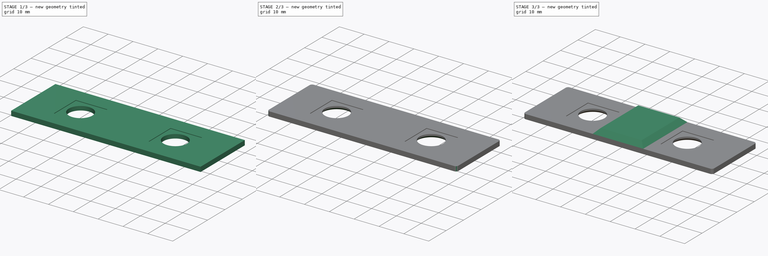
[diagram: build sequence overview — one tinted view per stage of 3, left to right]
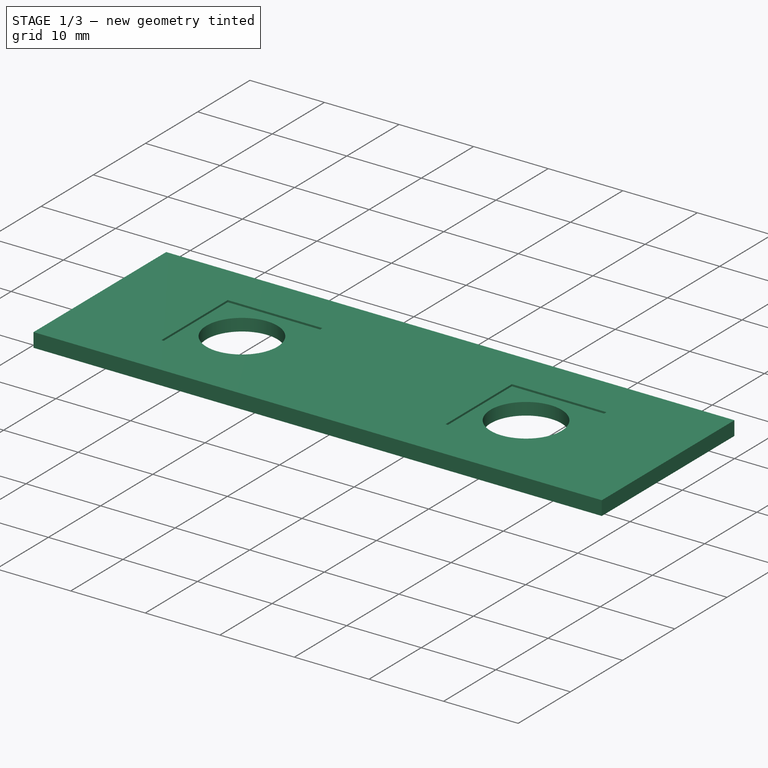
[diagram: stage 1 of 3 — iso view after this stage's code; geometry added in this stage tinted green]
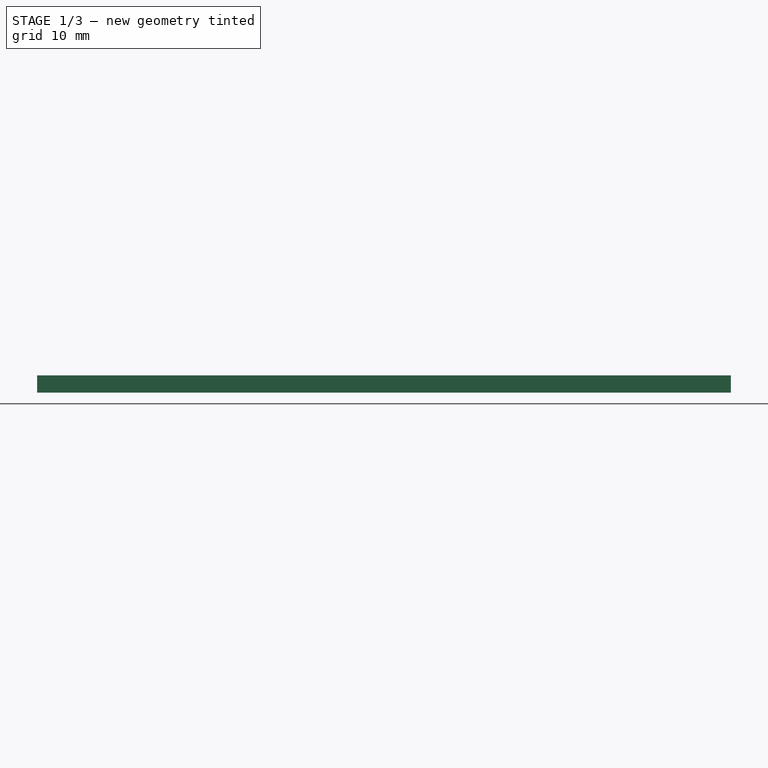
[diagram: stage 1 of 3 — front view after this stage's code; geometry added in this stage tinted green]
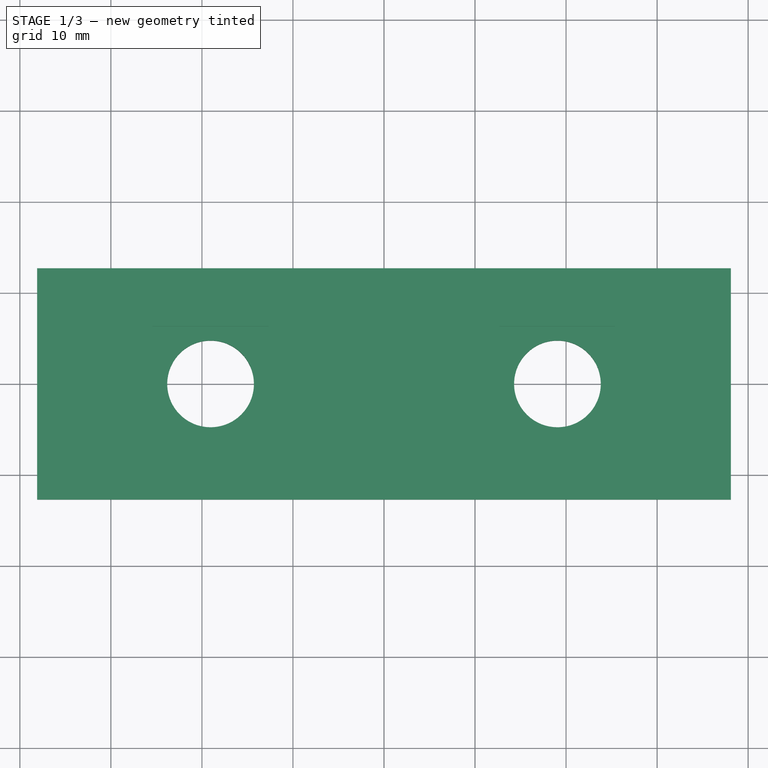
[diagram: stage 1 of 3 — top view after this stage's code; geometry added in this stage tinted green]
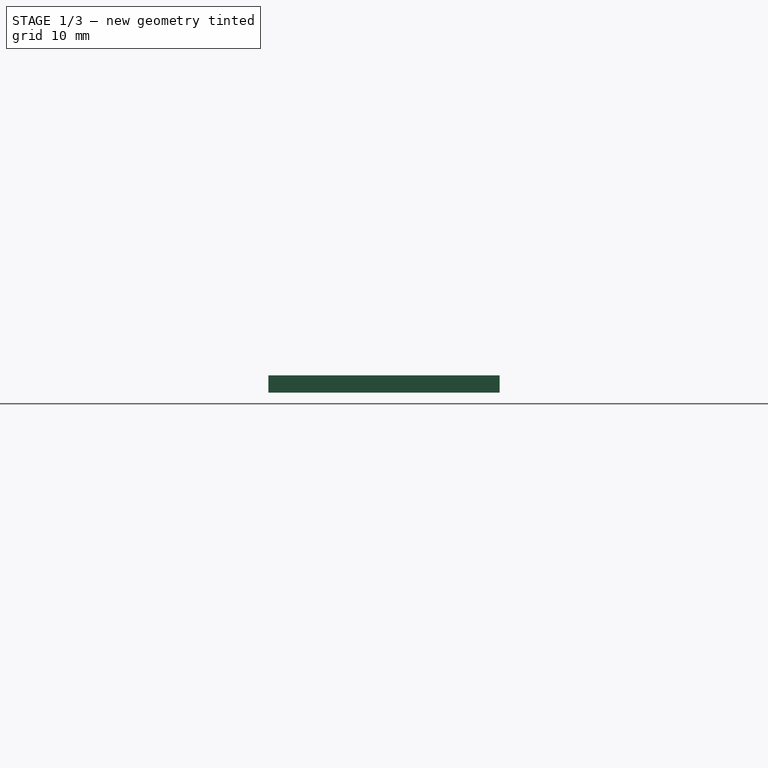
[diagram: stage 1 of 3 — right view after this stage's code; geometry added in this stage tinted green]
FCSTD DOCUMENT  (FreeCAD 0.18R16146 (Git))
Label: Sample_Holder_Nonlinear_0p075_Bump
License: All rights reserved
LicenseURL: http://en.wikipedia.org/wiki/All_rights_reserved
objects: Sketcher::SketchObject×3, PartDesign::Pad×2, PartDesign::Chamfer×2, PartDesign::Pocket×1, PartDesign::Fillet×1, PartDesign::Body×1
note: 13 computed .brp shape members not serialized (recipe doc carries the construction recipe); baked Part::Feature solids carry a one-line shape summary decoded from their .brp

FEATURE [Sketcher::SketchObject] Sketch
  MapMode = 5
  Support = -> [XY_Plane]
  sketch-geometry (8):
    g0: LineSegment StartX=-38.1 StartY=12.7 StartZ=0 EndX=38.1 EndY=12.7 EndZ=0
    g1: LineSegment StartX=38.1 StartY=12.7 StartZ=0 EndX=38.1 EndY=-12.7 EndZ=0
    g2: LineSegment StartX=38.1 StartY=-12.7 StartZ=0 EndX=-38.1 EndY=-12.7 EndZ=0
    g3: LineSegment StartX=-38.1 StartY=-12.7 StartZ=0 EndX=-38.1 EndY=12.7 EndZ=0
    g4: LineSegment [constr] StartX=0 StartY=0 StartZ=0 EndX=19.05 EndY=0 EndZ=0
    g5: LineSegment [constr] StartX=0 StartY=0 StartZ=0 EndX=-19.05 EndY=0 EndZ=0
    g6: Circle CenterX=-19.05 CenterY=0 CenterZ=0 NormalX=0 NormalY=0 NormalZ=1 AngleXU=0 Radius=4.7625
    g7: Circle CenterX=19.05 CenterY=0 CenterZ=0 NormalX=0 NormalY=0 NormalZ=1 AngleXU=0 Radius=4.7625
  constraints (16):
    c: Coincident(g0,g1)
    c: Coincident(g1,g2)
    c: Coincident(g2,g3)
    c: Coincident(g3,g0)
    c: Horizontal(g0)
    c: Vertical(g1)
    c: DistanceX(g0,g0) = 76.2
    c: DistanceY(g3,g3) = 25.4
    c: Symmetric(g2,g1,g-2)
    c: Symmetric(g0,g2,g-1)
    c: Horizontal(g5)
    c: Horizontal(g4)
    c: DistanceX(g5,g5) = 19.05
    c: Equal(g5,g4)
    c: Coincident(g6,g5)
    c: Coincident(g7,g4)
FEATURE [PartDesign::Pad] Pad
  Length = 1.905
  Length2 = 99.9998
  Profile = -> Sketch
  Type = 0
FEATURE [Sketcher::SketchObject] Sketch001
  MapMode = 5
  Placement = pos=(0,0,1.905) rot=(0,0,1;0rad)
  sketch-geometry (12):
    g0: LineSegment StartX=-25.4 StartY=6.35 StartZ=0 EndX=-12.7 EndY=6.35 EndZ=0
    g1: LineSegment StartX=-12.7 StartY=6.35 StartZ=0 EndX=-12.7 EndY=-6.35 EndZ=0
    g2: LineSegment StartX=-12.7 StartY=-6.35 StartZ=0 EndX=-25.4 EndY=-6.35 EndZ=0
    g3: LineSegment StartX=-25.4 StartY=-6.35 StartZ=0 EndX=-25.4 EndY=6.35 EndZ=0
    g4: LineSegment StartX=12.7 StartY=6.35 StartZ=0 EndX=25.4 EndY=6.35 EndZ=0
    g5: LineSegment StartX=25.4 StartY=6.35 StartZ=0 EndX=25.4 EndY=-6.35 EndZ=0
    g6: LineSegment StartX=25.4 StartY=-6.35 StartZ=0 EndX=12.7 EndY=-6.35 EndZ=0
    g7: LineSegment StartX=12.7 StartY=-6.35 StartZ=0 EndX=12.7 EndY=6.35 EndZ=0
    g8: LineSegment [constr] StartX=0 StartY=0 StartZ=0 EndX=-19.05 EndY=0 EndZ=0
    g9: LineSegment [constr] StartX=0 StartY=0 StartZ=0 EndX=19.05 EndY=0 EndZ=0
    g10: LineSegment [constr] StartX=-19.05 StartY=-19.05 StartZ=0 EndX=-19.05 EndY=0 EndZ=0
    g11: LineSegment [constr] StartX=19.05 StartY=-19.05 StartZ=0 EndX=19.05 EndY=0 EndZ=0
  constraints (30):
    c: Coincident(g0,g1)
    c: Coincident(g1,g2)
    c: Coincident(g2,g3)
    c: Coincident(g3,g0)
    c: Horizontal(g0)
    c: Horizontal(g2)
    c: Vertical(g1)
    c: Vertical(g3)
    c: Coincident(g4,g5)
    c: Coincident(g5,g6)
    c: Coincident(g6,g7)
    c: Coincident(g7,g4)
    c: Horizontal(g4)
    c: Horizontal(g6)
    c: Vertical(g5)
    c: Vertical(g7)
    c: Coincident(g9,g-1)
    c: Coincident(g8,g-1)
    c: DistanceX(g8,g8) = 19.05
    c: Equal(g8,g9)
    c: Symmetric(g0,g1,g8)
    c: Symmetric(g4,g6,g9)
    c: Coincident(g9,g11)
    c: Coincident(g8,g10)
    c: DistanceY(g10,g10) = 19.05
    c: Equal(g10,g11)
    c: Symmetric(g2,g1,g10)
    c: Symmetric(g6,g5,g11)
    c: Equal(g4,g5)
    c: Equal(g3,g2)
FEATURE [PartDesign::Pocket] Pocket
  BaseFeature = -> Pad
  Length = 0.254
  Length2 = 99.9998
  Profile = -> Sketch001
  Type = 0
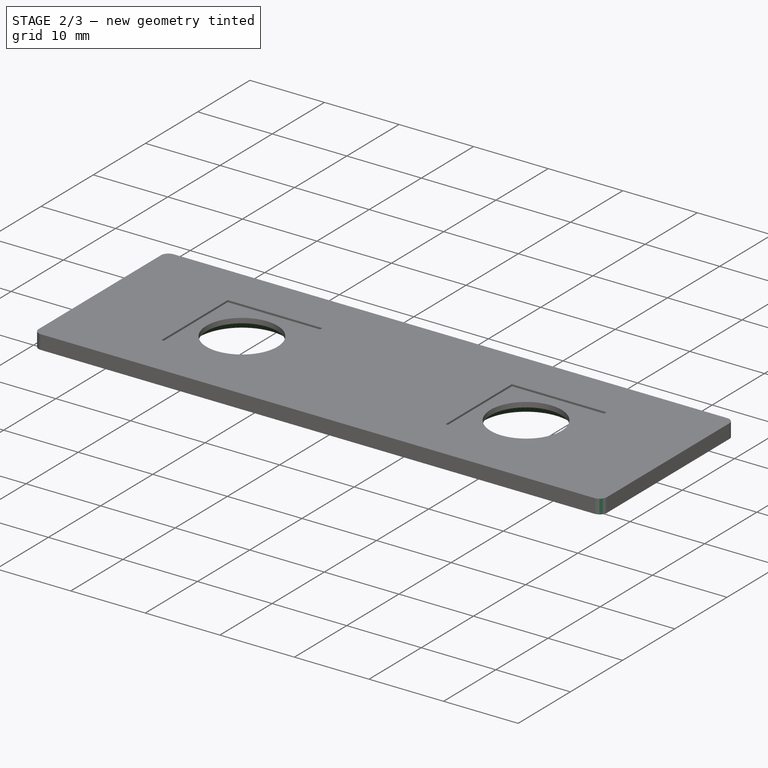
[diagram: stage 2 of 3 — iso view after this stage's code; geometry added in this stage tinted green]
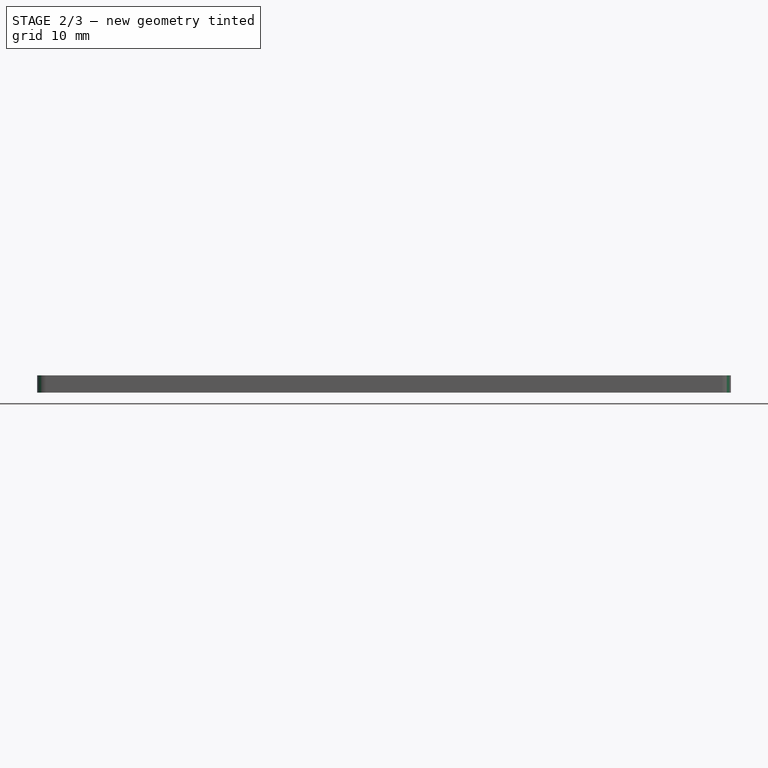
[diagram: stage 2 of 3 — front view after this stage's code; geometry added in this stage tinted green]
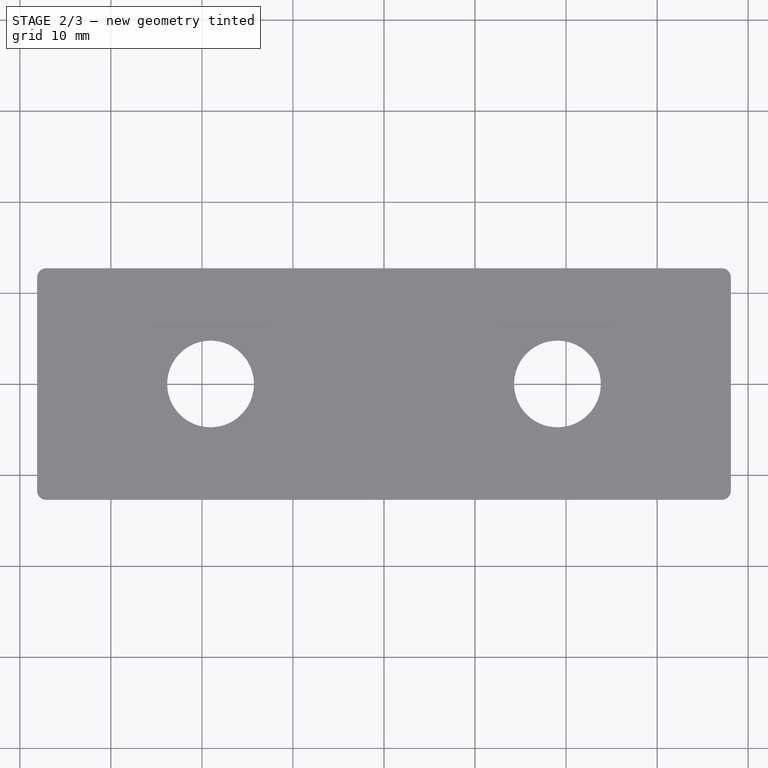
[diagram: stage 2 of 3 — top view after this stage's code; geometry added in this stage tinted green]
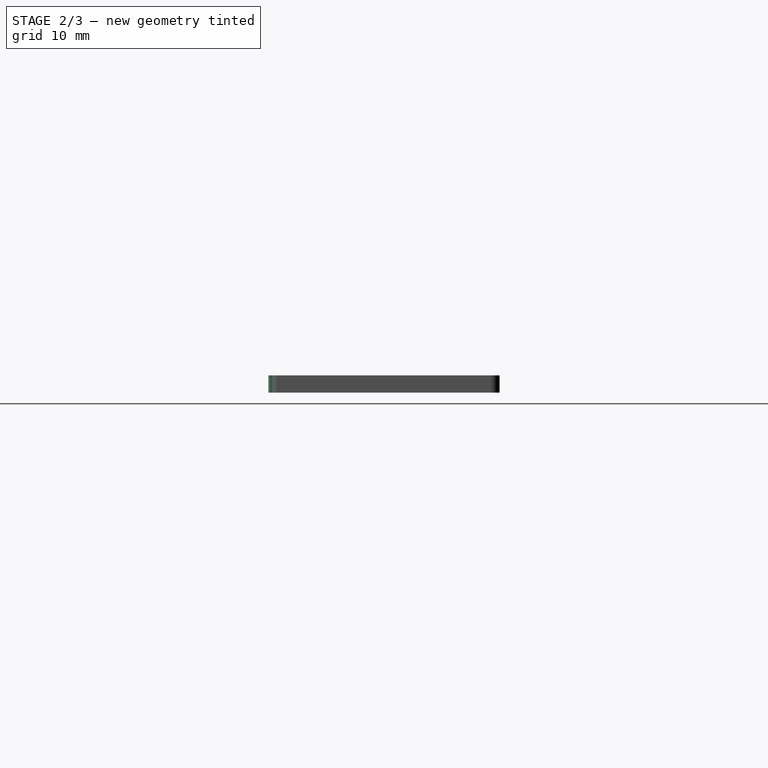
[diagram: stage 2 of 3 — right view after this stage's code; geometry added in this stage tinted green]
FEATURE [Sketcher::SketchObject] Sketch002
  ExternalGeometry = -> [Pocket]
  MapMode = 5
  Placement = pos=(0,0,1.905) rot=(0,0,1;0rad)
  Support = -> [Pocket]
  sketch-geometry (4):
    g0: LineSegment StartX=-10.16 StartY=12.7 StartZ=0 EndX=10.16 EndY=12.7 EndZ=0
    g1: LineSegment StartX=10.16 StartY=12.7 StartZ=0 EndX=10.16 EndY=-12.7 EndZ=0
    g2: LineSegment StartX=10.16 StartY=-12.7 StartZ=0 EndX=-10.16 EndY=-12.7 EndZ=0
    g3: LineSegment StartX=-10.16 StartY=-12.7 StartZ=0 EndX=-10.16 EndY=12.7 EndZ=0
  constraints (11):
    c: Coincident(g0,g1)
    c: Coincident(g1,g2)
    c: Coincident(g2,g3)
    c: Coincident(g3,g0)
    c: Horizontal(g2)
    c: Vertical(g1)
    c: Vertical(g3)
    c: PointOnObject(g0,g-3)
    c: PointOnObject(g1,g-4)
    c: Symmetric(g0,g0,g-2)
    c: DistanceX(g0,g0) = 20.32
FEATURE [PartDesign::Chamfer] Chamfer
  Base = -> Pocket [Edge12,Edge13]
  BaseFeature = -> Pocket
  Size = 1
FEATURE [PartDesign::Fillet] Fillet
  Base = -> Chamfer [Edge10,Edge12,Edge14,Edge9]
  BaseFeature = -> Chamfer
  Radius = 1
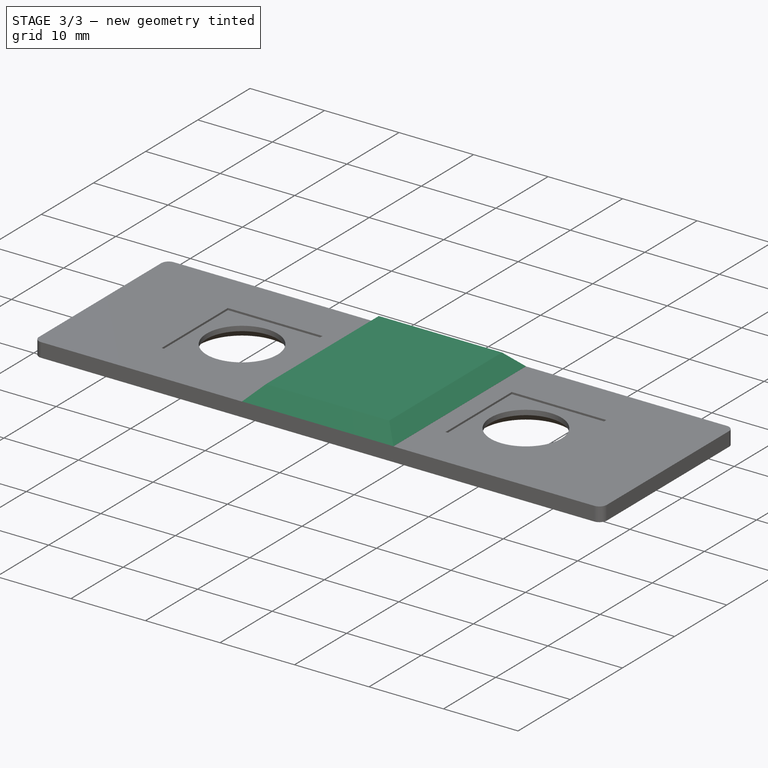
[diagram: stage 3 of 3 — iso view after this stage's code; geometry added in this stage tinted green]
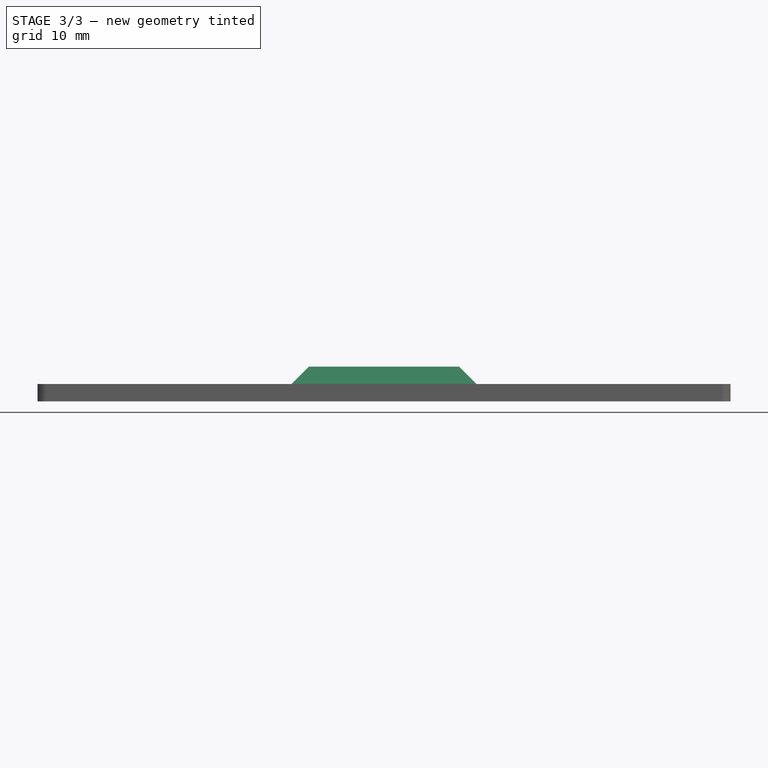
[diagram: stage 3 of 3 — front view after this stage's code; geometry added in this stage tinted green]
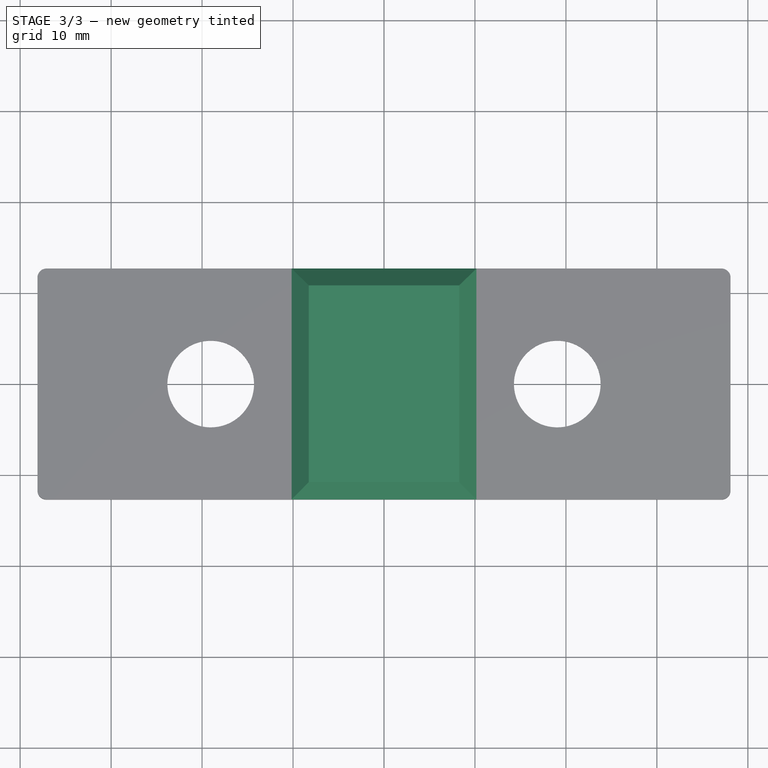
[diagram: stage 3 of 3 — top view after this stage's code; geometry added in this stage tinted green]
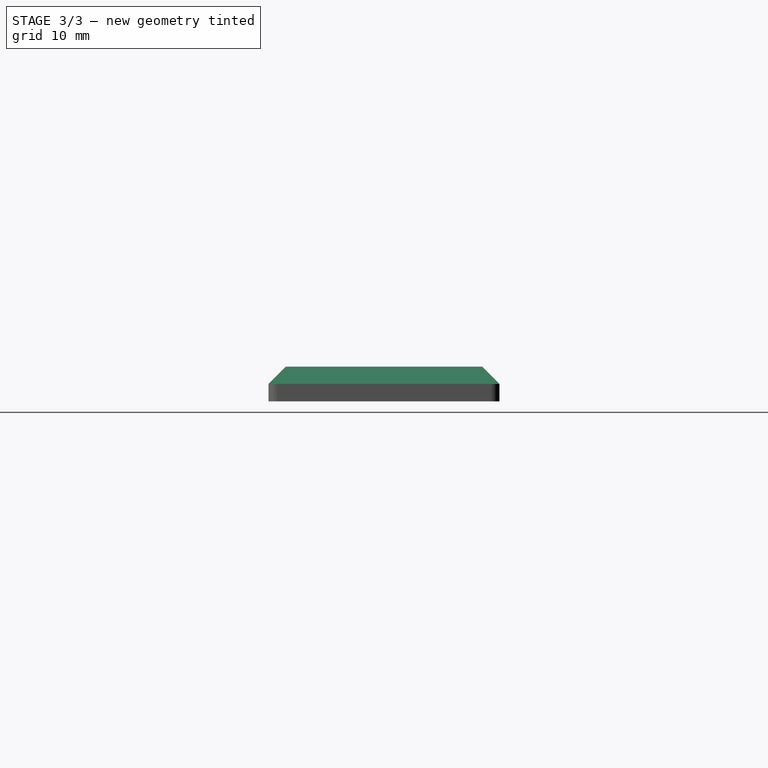
[diagram: stage 3 of 3 — right view after this stage's code; geometry added in this stage tinted green]
FEATURE [PartDesign::Pad] Pad001
  BaseFeature = -> Fillet
  Length = 1.905
  Length2 = 100
  Profile = -> Sketch002
  Type = 0
FEATURE [PartDesign::Chamfer] Chamfer001
  Base = -> Pad001 [Edge50,Edge55,Edge64,Edge42]
  BaseFeature = -> Pad001
  Size = 1.889
FEATURE [PartDesign::Body] Body
  Group = -> [Sketch,Pad,Sketch001,Pocket,Sketch002,Chamfer,Fillet,Pad001,Chamfer001]
  Origin = -> Origin
  Tip = -> Chamfer001
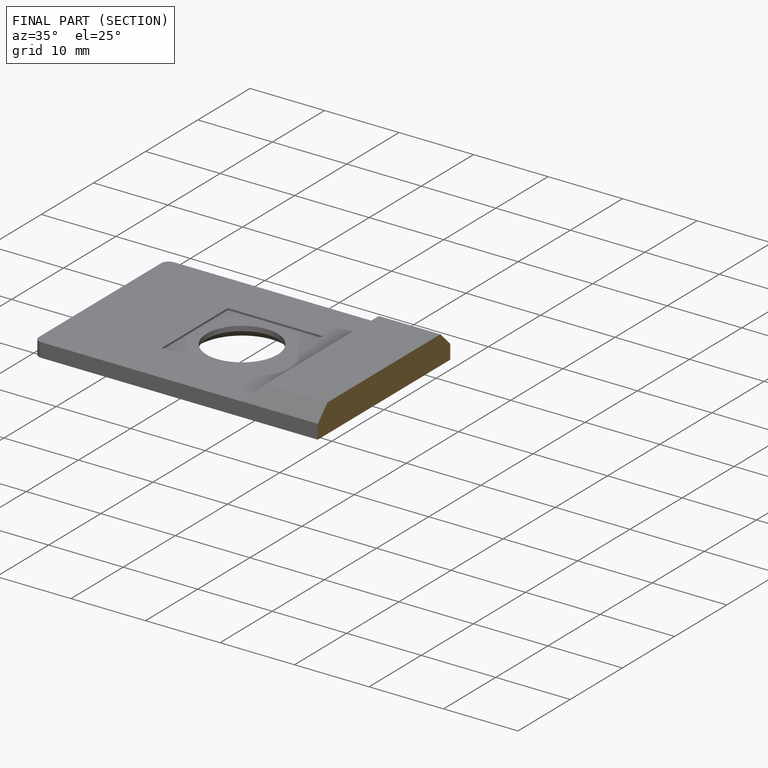
[diagram: finished part — half-section view (interior)]
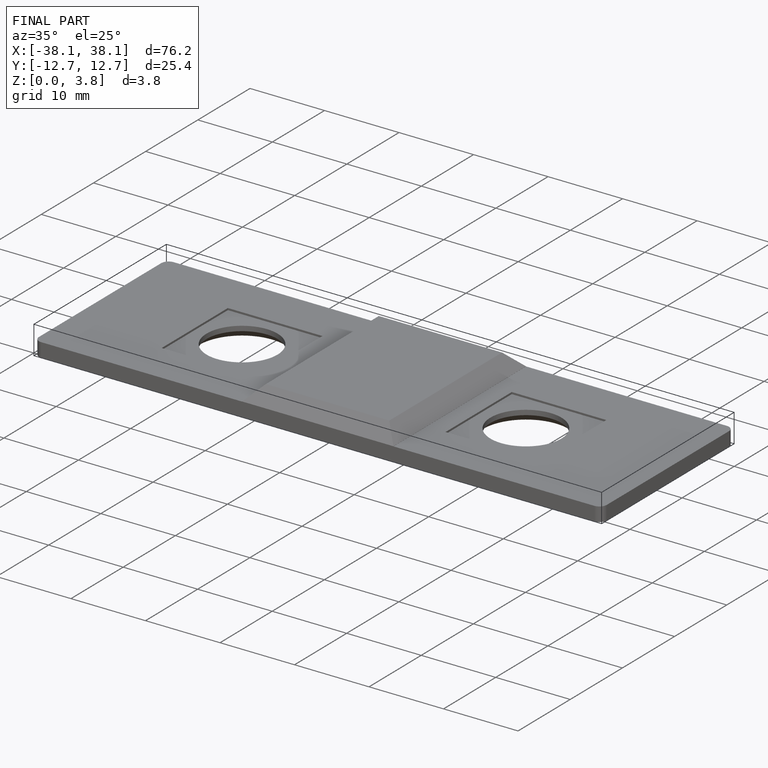
[diagram: finished part — iso view with bounding-box wireframe]
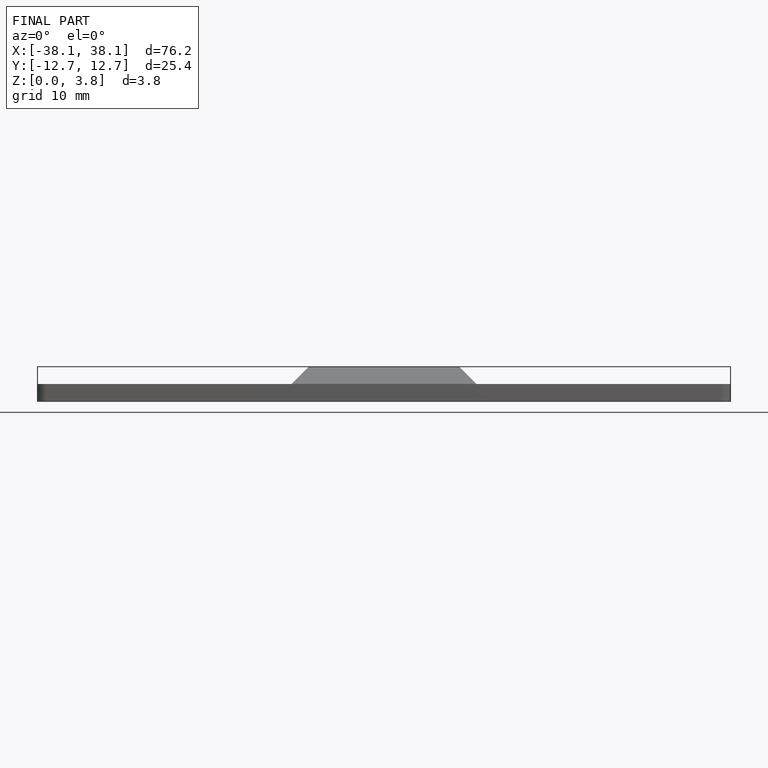
[diagram: finished part — front view with bounding-box wireframe]
